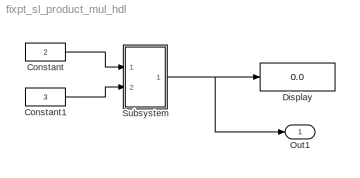
MODEL fixpt_sl_product_mul_hdl
KIND model
BLOCK [Constant] Constant
  AttributesFormatString = DataType = %<OutDataTypeStr>
  OutDataTypeStr = fixdt(1,8,1)
  SID = 1
  SampleTime = 1
  Value = 2
BLOCK [Constant] Constant1
  AttributesFormatString = DataType = %<OutDataTypeStr>
  OutDataTypeStr = fixdt(1,8,2)
  SID = 2
  SampleTime = 1
  Value = 3
BLOCK [Display] Display
  AttributesFormatString = Format = %<Format>
  Decimation = 1
  Lockdown = off
  Ports = [1]
  SID = 3
BLOCK [Outport] Out1
  IconDisplay = Port number
  SID = 9
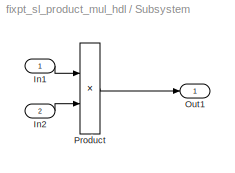
BLOCK [SubSystem] Subsystem
  FunctionWithSeparateData = off
  MaskHideContents = off
  MinAlgLoopOccurrences = off
  Opaque = off
  Ports = [2, 1]
  PropExecContextOutsideSubsystem = off
  RTWSystemCode = Auto
  RequestExecContextInheritance = off
  SID = 4
BLOCK [Inport] Subsystem/In1
  IconDisplay = Port number
  SID = 5
BLOCK [Inport] Subsystem/In2
  IconDisplay = Port number
  Port = 2
  SID = 6
BLOCK [Outport] Subsystem/Out1
  IconDisplay = Port number
  SID = 8
BLOCK [Product] Subsystem/Product
  InputSameDT = off
  OutDataTypeStr = fixdt(1,14,1)
  Ports = [2, 1]
  SID = 7
  SaturateOnIntegerOverflow = off
LINE Constant1:1 -> Subsystem:2
LINE Constant:1 -> Subsystem:1
LINE Subsystem/In1:1 -> Subsystem/Product:1
LINE Subsystem/In2:1 -> Subsystem/Product:2
LINE Subsystem/Product:1 -> Subsystem/Out1:1
NET Subsystem:1 -> Display:1, Out1:1
note: NET lines group one-source signal fan-out (src -> all destinations, sorted); 1:1 wires keep LINE
